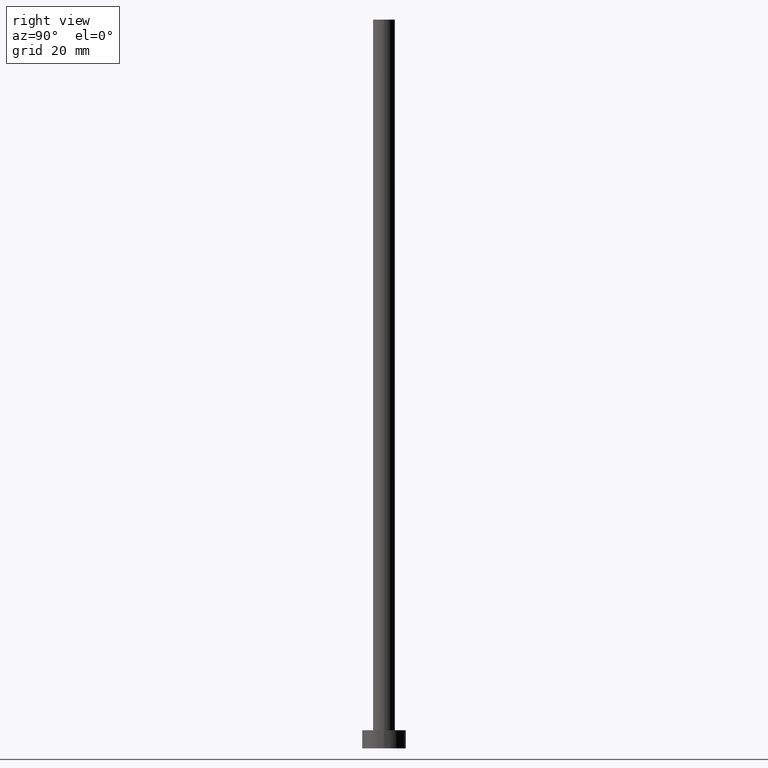
[diagram: clean part render]
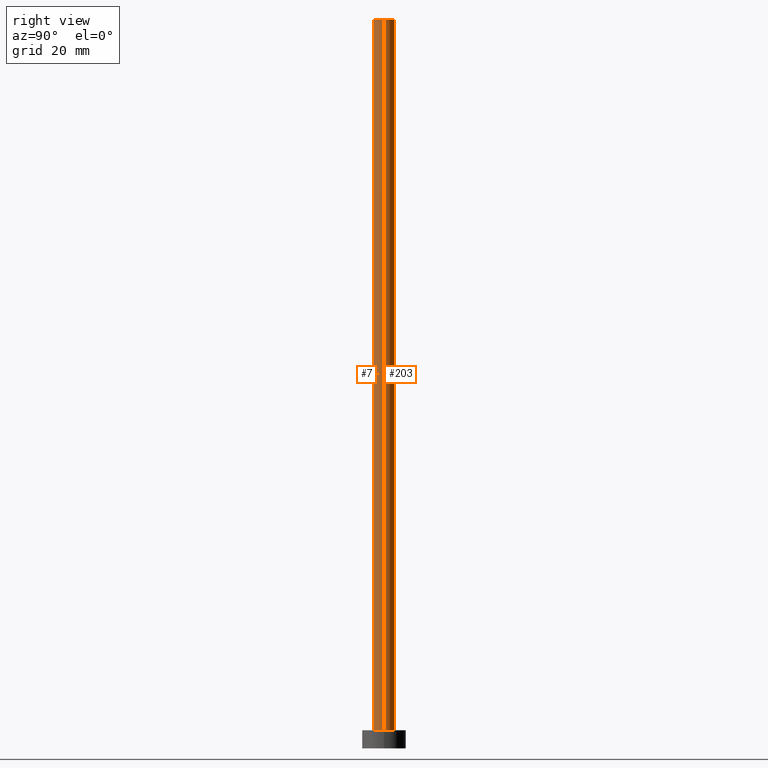
[diagram: same view with one multi-face feature highlighted, each face labeled with its STEP entity id]
A machine part, right view. The highlighted faces form ONE feature: a constant-radius fillet chain: 2 tangent blend faces with common blend radius 3 mm. The faces share edges in the B-rep.
Their STEP definitions:
[1] entity #203 (Cylinder):
#11 = CARTESIAN_POINT ( 'NONE',  ( 0.000000000000000000, 0.000000000000000000, 5.000000000000000000 ) ) ;
#17 = CARTESIAN_POINT ( 'NONE',  ( 3.000000000000000444, 3.673940397442060361E-16, 5.000000000000000000 ) ) ;
#22 = ORIENTED_EDGE ( 'NONE', *, *, #146, .F. ) ;
#30 = VERTEX_POINT ( 'NONE', #176 ) ;
#33 = CARTESIAN_POINT ( 'NONE',  ( -3.000000000000000444, 0.000000000000000000, 200.0000000000000000 ) ) ;
#35 = FACE_OUTER_BOUND ( 'NONE', #224, .T. ) ;
#50 = AXIS2_PLACEMENT_3D ( 'NONE', #69, #181, #110 ) ;
#57 = CARTESIAN_POINT ( 'NONE',  ( 3.000000000000000444, 3.673940397442060361E-16, 200.0000000000000000 ) ) ;
#67 = DIRECTION ( 'NONE',  ( 1.000000000000000000, 0.000000000000000000, 0.000000000000000000 ) ) ;
#69 = CARTESIAN_POINT ( 'NONE',  ( 0.000000000000000000, 0.000000000000000000, 200.0000000000000000 ) ) ;
#70 = VECTOR ( 'NONE', #196, 1000.000000000000000 ) ;
#89 = DIRECTION ( 'NONE',  ( -0.000000000000000000, -0.000000000000000000, -1.000000000000000000 ) ) ;
#94 = LINE ( 'NONE', #57, #70 ) ;
#96 = ORIENTED_EDGE ( 'NONE', *, *, #123, .F. ) ;
#99 = VERTEX_POINT ( 'NONE', #17 ) ;
#110 = DIRECTION ( 'NONE',  ( 1.000000000000000000, 0.000000000000000000, 0.000000000000000000 ) ) ;
#123 = EDGE_CURVE ( 'NONE', #169, #164, #129, .T. ) ;
#129 = LINE ( 'NONE', #178, #223 ) ;
#136 = CARTESIAN_POINT ( 'NONE',  ( 0.000000000000000000, 0.000000000000000000, 200.0000000000000000 ) ) ;
#146 = EDGE_CURVE ( 'NONE', #30, #169, #242, .T. ) ;
#161 = CIRCLE ( 'NONE', #232, 3.000000000000000444 ) ;
#163 = DIRECTION ( 'NONE',  ( -1.000000000000000000, 0.000000000000000000, 0.000000000000000000 ) ) ;
#164 = VERTEX_POINT ( 'NONE', #215 ) ;
#169 = VERTEX_POINT ( 'NONE', #33 ) ;
#170 = ORIENTED_EDGE ( 'NONE', *, *, #225, .T. ) ;
#176 = CARTESIAN_POINT ( 'NONE',  ( 3.000000000000000444, 3.673940397442060361E-16, 200.0000000000000000 ) ) ;
#178 = CARTESIAN_POINT ( 'NONE',  ( -3.000000000000000444, 0.000000000000000000, 200.0000000000000000 ) ) ;
#181 = DIRECTION ( 'NONE',  ( 0.000000000000000000, 0.000000000000000000, 1.000000000000000000 ) ) ;
#195 = AXIS2_PLACEMENT_3D ( 'NONE', #136, #217, #163 ) ;
#196 = DIRECTION ( 'NONE',  ( -0.000000000000000000, -0.000000000000000000, -1.000000000000000000 ) ) ;
#197 = EDGE_CURVE ( 'NONE', #99, #164, #161, .T. ) ;
#203 = ADVANCED_FACE ( 'NONE', ( #35 ), #237, .T. ) ;
#209 = ORIENTED_EDGE ( 'NONE', *, *, #197, .T. ) ;
#215 = CARTESIAN_POINT ( 'NONE',  ( -3.000000000000000444, 0.000000000000000000, 5.000000000000000000 ) ) ;
#217 = DIRECTION ( 'NONE',  ( -0.000000000000000000, -0.000000000000000000, -1.000000000000000000 ) ) ;
#223 = VECTOR ( 'NONE', #89, 1000.000000000000000 ) ;
#224 = EDGE_LOOP ( 'NONE', ( #22, #170, #209, #96 ) ) ;
#225 = EDGE_CURVE ( 'NONE', #30, #99, #94, .T. ) ;
#232 = AXIS2_PLACEMENT_3D ( 'NONE', #11, #248, #67 ) ;
#237 = CYLINDRICAL_SURFACE ( 'NONE', #195, 3.000000000000000444 ) ;
#242 = CIRCLE ( 'NONE', #50, 3.000000000000000444 ) ;
#248 = DIRECTION ( 'NONE',  ( 0.000000000000000000, 0.000000000000000000, 1.000000000000000000 ) ) ;
[2] entity #7 (Cylinder):
#7 = ADVANCED_FACE ( 'NONE', ( #148 ), #100, .T. ) ;
#12 = CARTESIAN_POINT ( 'NONE',  ( 0.000000000000000000, 0.000000000000000000, 200.0000000000000000 ) ) ;
#17 = CARTESIAN_POINT ( 'NONE',  ( 3.000000000000000444, 3.673940397442060361E-16, 5.000000000000000000 ) ) ;
#19 = AXIS2_PLACEMENT_3D ( 'NONE', #65, #213, #133 ) ;
#30 = VERTEX_POINT ( 'NONE', #176 ) ;
#33 = CARTESIAN_POINT ( 'NONE',  ( -3.000000000000000444, 0.000000000000000000, 200.0000000000000000 ) ) ;
#38 = EDGE_CURVE ( 'NONE', #169, #30, #182, .T. ) ;
#40 = DIRECTION ( 'NONE',  ( -0.000000000000000000, -0.000000000000000000, -1.000000000000000000 ) ) ;
#54 = ORIENTED_EDGE ( 'NONE', *, *, #225, .F. ) ;
#57 = CARTESIAN_POINT ( 'NONE',  ( 3.000000000000000444, 3.673940397442060361E-16, 200.0000000000000000 ) ) ;
#59 = ORIENTED_EDGE ( 'NONE', *, *, #38, .F. ) ;
#65 = CARTESIAN_POINT ( 'NONE',  ( 0.000000000000000000, 0.000000000000000000, 5.000000000000000000 ) ) ;
#70 = VECTOR ( 'NONE', #196, 1000.000000000000000 ) ;
#80 = ORIENTED_EDGE ( 'NONE', *, *, #92, .T. ) ;
#89 = DIRECTION ( 'NONE',  ( -0.000000000000000000, -0.000000000000000000, -1.000000000000000000 ) ) ;
#92 = EDGE_CURVE ( 'NONE', #164, #99, #139, .T. ) ;
#94 = LINE ( 'NONE', #57, #70 ) ;
#98 = EDGE_LOOP ( 'NONE', ( #54, #59, #244, #80 ) ) ;
#99 = VERTEX_POINT ( 'NONE', #17 ) ;
#100 = CYLINDRICAL_SURFACE ( 'NONE', #200, 3.000000000000000444 ) ;
#122 = CARTESIAN_POINT ( 'NONE',  ( 0.000000000000000000, 0.000000000000000000, 200.0000000000000000 ) ) ;
#123 = EDGE_CURVE ( 'NONE', #169, #164, #129, .T. ) ;
#129 = LINE ( 'NONE', #178, #223 ) ;
#133 = DIRECTION ( 'NONE',  ( 1.000000000000000000, 0.000000000000000000, 0.000000000000000000 ) ) ;
#139 = CIRCLE ( 'NONE', #19, 3.000000000000000444 ) ;
#148 = FACE_OUTER_BOUND ( 'NONE', #98, .T. ) ;
#154 = DIRECTION ( 'NONE',  ( 1.000000000000000000, 0.000000000000000000, 0.000000000000000000 ) ) ;
#157 = DIRECTION ( 'NONE',  ( 0.000000000000000000, 0.000000000000000000, 1.000000000000000000 ) ) ;
#158 = AXIS2_PLACEMENT_3D ( 'NONE', #12, #157, #154 ) ;
#164 = VERTEX_POINT ( 'NONE', #215 ) ;
#169 = VERTEX_POINT ( 'NONE', #33 ) ;
#176 = CARTESIAN_POINT ( 'NONE',  ( 3.000000000000000444, 3.673940397442060361E-16, 200.0000000000000000 ) ) ;
#178 = CARTESIAN_POINT ( 'NONE',  ( -3.000000000000000444, 0.000000000000000000, 200.0000000000000000 ) ) ;
#182 = CIRCLE ( 'NONE', #158, 3.000000000000000444 ) ;
#196 = DIRECTION ( 'NONE',  ( -0.000000000000000000, -0.000000000000000000, -1.000000000000000000 ) ) ;
#200 = AXIS2_PLACEMENT_3D ( 'NONE', #122, #40, #207 ) ;
#207 = DIRECTION ( 'NONE',  ( -1.000000000000000000, 0.000000000000000000, 0.000000000000000000 ) ) ;
#213 = DIRECTION ( 'NONE',  ( 0.000000000000000000, 0.000000000000000000, 1.000000000000000000 ) ) ;
#215 = CARTESIAN_POINT ( 'NONE',  ( -3.000000000000000444, 0.000000000000000000, 5.000000000000000000 ) ) ;
#223 = VECTOR ( 'NONE', #89, 1000.000000000000000 ) ;
#225 = EDGE_CURVE ( 'NONE', #30, #99, #94, .T. ) ;
#244 = ORIENTED_EDGE ( 'NONE', *, *, #123, .T. ) ;